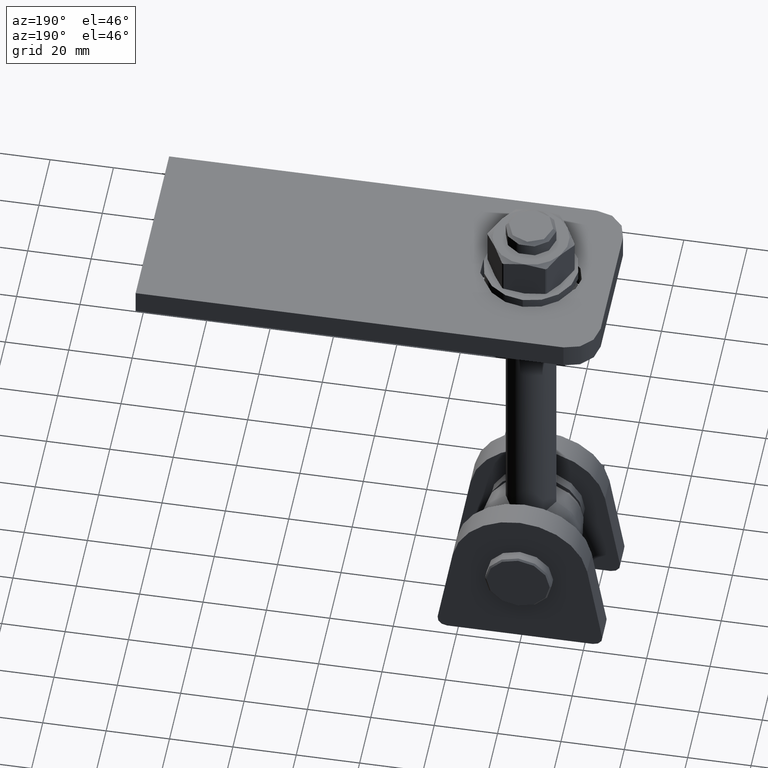
[diagram: clean part render]
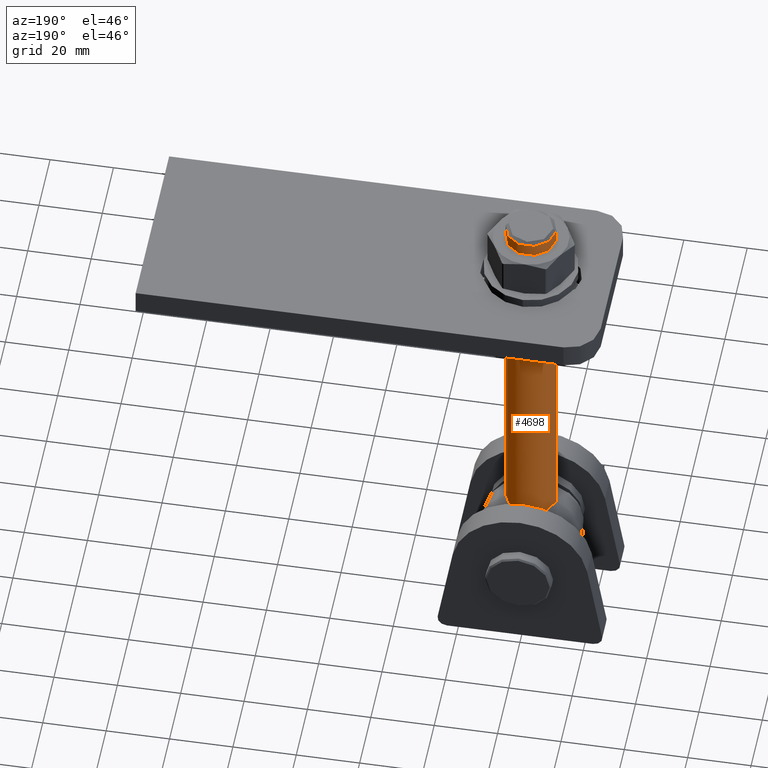
[diagram: same view with one face highlighted and labeled with its STEP entity id]
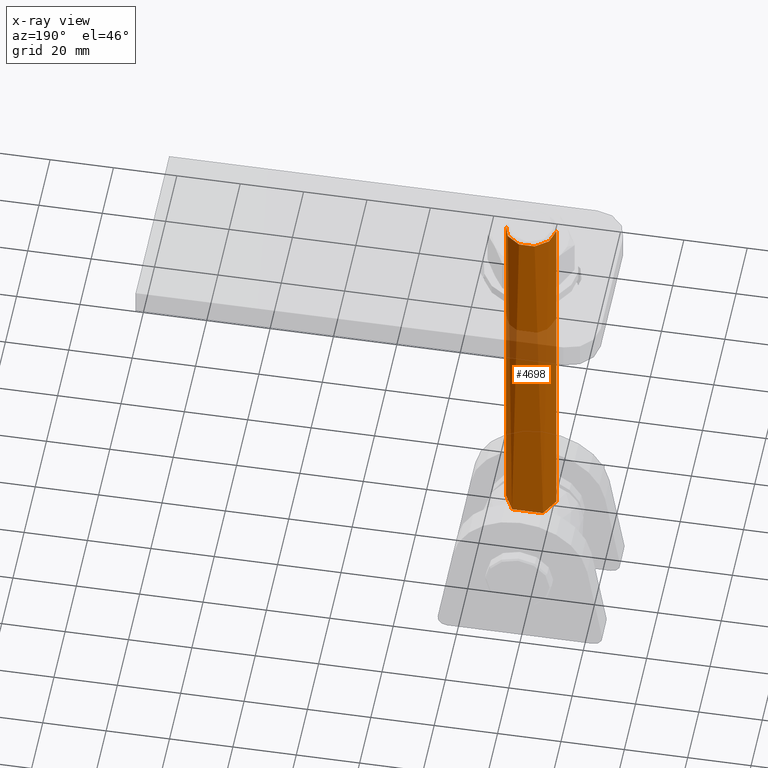
[diagram: x-ray of the same camera — body ghosted, the highlighted face saturated]
A machine part, auxiliary view. The second image highlights one B-rep face of the part: STEP entity #4698.
The next image is the same camera in x-ray: the body ghosted, the highlighted face saturated — about 12% of this face is hidden behind the body in this view.
In plain terms, the highlighted cylindrical surface (edge-blend (fillet) strip) has radius 8 mm, axis along (0, 0, 1).
Its self-contained STEP definition (entity closure, byte-faithful):
#371 = CARTESIAN_POINT ( 'NONE',  ( -7.646875434342086386, 2.430865528045758950, 14.03204079114772007 ) ) ;
#393 = EDGE_CURVE ( 'NONE', #15464, #9085, #11807, .T. ) ;
#492 = EDGE_LOOP ( 'NONE', ( #15483, #2397, #10115, #16302, #9228, #3945 ) ) ;
#624 = EDGE_CURVE ( 'NONE', #6133, #4695, #4998, .T. ) ;
#625 = DIRECTION ( 'NONE',  ( 1.000000000000000000, 0.000000000000000000, 0.000000000000000000 ) ) ;
#971 = LINE ( 'NONE', #7330, #14424 ) ;
#1038 = CARTESIAN_POINT ( 'NONE',  ( -4.890266757933003028, 6.331294578224540004, 14.75735962065576601 ) ) ;
#1101 = CARTESIAN_POINT ( 'NONE',  ( -4.178414855855719701, 6.835914880061697119, 14.92133391211843296 ) ) ;
#1104 = CARTESIAN_POINT ( 'NONE',  ( 7.306096291146537247, 3.273109272230924738, 14.10725161645347114 ) ) ;
#1123 = B_SPLINE_CURVE_WITH_KNOTS ( 'NONE', 3,
 ( #12819, #10277, #6352, #6462, #14256, #15694, #8994, #3683, #10328, #7747, #10437, #5036, #7689, #15585, #3742, #1101, #15743, #1038 ),
 .UNSPECIFIED., .F., .F.,
 ( 4, 2, 2, 2, 2, 2, 2, 2, 4 ),
 ( 0.007326280616070676363, 0.009966224182448957941, 0.01128619596563809960, 0.01260616774882724125, 0.01326615364042181382, 0.01392613953201638291, 0.01524611131520552630, 0.01656608309839466969, 0.01788605488158381135 ),
 .UNSPECIFIED. ) ;
#1184 = EDGE_CURVE ( 'NONE', #4695, #3259, #14979, .T. ) ;
#1369 = EDGE_CURVE ( 'NONE', #9085, #6133, #1123, .T. ) ;
#1508 = CARTESIAN_POINT ( 'NONE',  ( 4.890266757933002140, 6.331294578224538228, 14.75735962065576601 ) ) ;
#1660 = CARTESIAN_POINT ( 'NONE',  ( -8.000000000000000000, 3.469446951953614189E-15, 14.14434515981563578 ) ) ;
#1785 = AXIS2_PLACEMENT_3D ( 'NONE', #13112, #13218, #10978 ) ;
#1840 = CARTESIAN_POINT ( 'NONE',  ( -7.438853820049363463, 3.005111151758782739, 14.07334226291325052 ) ) ;
#2397 = ORIENTED_EDGE ( 'NONE', *, *, #1184, .T. ) ;
#2642 = CARTESIAN_POINT ( 'NONE',  ( -8.000000000000000000, 9.797174393178825657E-16, 134.9999999999999716 ) ) ;
#3259 = VERTEX_POINT ( 'NONE', #2642 ) ;
#3633 = CARTESIAN_POINT ( 'NONE',  ( 8.000000000000000000, 0.6147576067159883362, 14.06587005194852580 ) ) ;
#3683 = CARTESIAN_POINT ( 'NONE',  ( -0.2161584738224671953, 8.000167325950869213, 15.36117966194622397 ) ) ;
#3742 = CARTESIAN_POINT ( 'NONE',  ( -3.413275982092973670, 7.248339811650108544, 15.06775708458043006 ) ) ;
#3945 = ORIENTED_EDGE ( 'NONE', *, *, #1369, .T. ) ;
#4695 = VERTEX_POINT ( 'NONE', #1660 ) ;
#4698 = ADVANCED_FACE ( 'NONE', ( #5534 ), #8212, .T. ) ;
#4923 = CARTESIAN_POINT ( 'NONE',  ( 7.930059011978167760, 1.220614503078636170, 14.02862362043325817 ) ) ;
#4978 = CARTESIAN_POINT ( 'NONE',  ( 7.633177986073821586, 2.414325646818747728, 14.04139488420872794 ) ) ;
#4998 = B_SPLINE_CURVE_WITH_KNOTS ( 'NONE', 3,
 ( #13595, #11063, #13699, #15086, #8373, #5773, #9831, #1840, #371, #5652, #8248, #16353 ),
 .UNSPECIFIED., .F., .F.,
 ( 4, 2, 2, 2, 2, 4 ),
 ( 0.01788605488158381135, 0.01971785334292976838, 0.02063375257360275036, 0.02154965180427573235, 0.02338145026562168938, 0.02521324872696764988 ),
 .UNSPECIFIED. ) ;
#5036 = CARTESIAN_POINT ( 'NONE',  ( -1.749197343105955982, 7.818778197815754893, 15.28762940315393237 ) ) ;
#5534 = FACE_OUTER_BOUND ( 'NONE', #492, .T. ) ;
#5652 = CARTESIAN_POINT ( 'NONE',  ( -7.929955858404095004, 1.224586137251349793, 14.02819458966202149 ) ) ;
#5773 = CARTESIAN_POINT ( 'NONE',  ( -6.885826319043446553, 4.083963764793234752, 14.21741895314990956 ) ) ;
#5855 = CARTESIAN_POINT ( 'NONE',  ( -8.000000000000000000, 9.797174393178825657E-16, -16.25199999999998823 ) ) ;
#6007 = CARTESIAN_POINT ( 'NONE',  ( 0.000000000000000000, 0.000000000000000000, 134.9999999999999716 ) ) ;
#6133 = VERTEX_POINT ( 'NONE', #14916 ) ;
#6136 = CARTESIAN_POINT ( 'NONE',  ( 4.890266757933002140, 6.331294578224538228, 14.75735962065576601 ) ) ;
#6352 = CARTESIAN_POINT ( 'NONE',  ( 3.435037750614081009, 7.278791775824340782, 15.07785442151732980 ) ) ;
#6353 = CARTESIAN_POINT ( 'NONE',  ( 8.000000000000000000, 3.228496193458325382E-15, 14.14434515981563401 ) ) ;
#6462 = CARTESIAN_POINT ( 'NONE',  ( 2.181932797261305623, 7.709360724743893556, 15.24379700737656940 ) ) ;
#7330 = CARTESIAN_POINT ( 'NONE',  ( 8.000000000000000000, 0.000000000000000000, -16.25199999999998823 ) ) ;
#7466 = CARTESIAN_POINT ( 'NONE',  ( 7.036830876839570870, 3.817760932042034927, 14.17594739047687646 ) ) ;
#7640 = CARTESIAN_POINT ( 'NONE',  ( 6.887017033809049060, 4.081890912608330702, 14.21709103613912184 ) ) ;
#7689 = CARTESIAN_POINT ( 'NONE',  ( -2.175021701743620639, 7.711343588570886531, 15.24457894531217228 ) ) ;
#7747 = CARTESIAN_POINT ( 'NONE',  ( -0.8806845102668570124, 7.954453788787160917, 15.34249943805522420 ) ) ;
#7839 = EDGE_CURVE ( 'NONE', #15464, #11956, #971, .T. ) ;
#8212 = CYLINDRICAL_SURFACE ( 'NONE', #1785, 8.000000000000000000 ) ;
#8248 = CARTESIAN_POINT ( 'NONE',  ( -8.000000000000000000, 0.6152582171426540514, 14.06580614796946094 ) ) ;
#8373 = CARTESIAN_POINT ( 'NONE',  ( -6.554250401822802274, 4.597299837772297337, 14.31058039402641313 ) ) ;
#8782 = CARTESIAN_POINT ( 'NONE',  ( 8.000000000000000000, 3.228496193458325382E-15, 14.14434515981563401 ) ) ;
#8994 = CARTESIAN_POINT ( 'NONE',  ( 0.4506363237751919715, 7.999658356440138895, 15.36097114506701544 ) ) ;
#9085 = VERTEX_POINT ( 'NONE', #1508 ) ;
#9228 = ORIENTED_EDGE ( 'NONE', *, *, #393, .T. ) ;
#9831 = CARTESIAN_POINT ( 'NONE',  ( -7.035682555711582076, 3.819814232770714302, 14.17626044242625660 ) ) ;
#10115 = ORIENTED_EDGE ( 'NONE', *, *, #16021, .T. ) ;
#10218 = CARTESIAN_POINT ( 'NONE',  ( 7.425549545016947306, 2.992588921062727003, 14.07969522857325195 ) ) ;
#10277 = CARTESIAN_POINT ( 'NONE',  ( 4.196840737939016464, 6.866894078889900221, 14.92445239967489101 ) ) ;
#10328 = CARTESIAN_POINT ( 'NONE',  ( -0.4397447498408849631, 7.990967703573941705, 15.35740378406089413 ) ) ;
#10437 = CARTESIAN_POINT ( 'NONE',  ( -1.099223611576112480, 7.927165534710090000, 15.33138190238823029 ) ) ;
#10978 = DIRECTION ( 'NONE',  ( 1.000000000000000000, 0.000000000000000000, 0.000000000000000000 ) ) ;
#11040 = DIRECTION ( 'NONE',  ( 0.000000000000000000, 0.000000000000000000, 1.000000000000000000 ) ) ;
#11063 = CARTESIAN_POINT ( 'NONE',  ( -5.371197808628560999, 5.959825346929696899, 14.64147111422503400 ) ) ;
#11477 = DIRECTION ( 'NONE',  ( 0.000000000000000000, 0.000000000000000000, 1.000000000000000000 ) ) ;
#11807 = B_SPLINE_CURVE_WITH_KNOTS ( 'NONE', 3,
 ( #6353, #3633, #4923, #12935, #4978, #10218, #1104, #7466, #7640, #16741, #15644, #15418, #16794, #6136 ),
 .UNSPECIFIED., .F., .F.,
 ( 4, 2, 2, 2, 2, 2, 4 ),
 ( 1.986167726052119538E-07, 0.001831719116597123114, 0.002747479366509381592, 0.003663239616421640719, 0.004578999866333899847, 0.005494760116246158108, 0.007326280616070676363 ),
 .UNSPECIFIED. ) ;
#11883 = VECTOR ( 'NONE', #11040, 1000.000000000000000 ) ;
#11956 = VERTEX_POINT ( 'NONE', #12300 ) ;
#12300 = CARTESIAN_POINT ( 'NONE',  ( 8.000000000000000000, 0.000000000000000000, 134.9999999999999716 ) ) ;
#12819 = CARTESIAN_POINT ( 'NONE',  ( 4.890266757933002140, 6.331294578224538228, 14.75735962065576601 ) ) ;
#12935 = CARTESIAN_POINT ( 'NONE',  ( 7.721162730447676203, 2.116029303812059670, 14.03082168912361460 ) ) ;
#13112 = CARTESIAN_POINT ( 'NONE',  ( 0.000000000000000000, 0.000000000000000000, -16.25199999999998823 ) ) ;
#13218 = DIRECTION ( 'NONE',  ( 0.000000000000000000, 0.000000000000000000, 1.000000000000000000 ) ) ;
#13269 = CIRCLE ( 'NONE', #14007, 8.000000000000000000 ) ;
#13595 = CARTESIAN_POINT ( 'NONE',  ( -4.890266757933003028, 6.331294578224540004, 14.75735962065576601 ) ) ;
#13699 = CARTESIAN_POINT ( 'NONE',  ( -5.801316083932563039, 5.541452024344921234, 14.52344880042866038 ) ) ;
#13891 = DIRECTION ( 'NONE',  ( 0.000000000000000000, 0.000000000000000000, -1.000000000000000000 ) ) ;
#14007 = AXIS2_PLACEMENT_3D ( 'NONE', #6007, #13891, #625 ) ;
#14256 = CARTESIAN_POINT ( 'NONE',  ( 1.753476001152317165, 7.817764106775647370, 15.28722362758567499 ) ) ;
#14424 = VECTOR ( 'NONE', #11477, 1000.000000000000000 ) ;
#14916 = CARTESIAN_POINT ( 'NONE',  ( -4.890266757933003028, 6.331294578224540004, 14.75735962065576601 ) ) ;
#14979 = LINE ( 'NONE', #5855, #11883 ) ;
#15086 = CARTESIAN_POINT ( 'NONE',  ( -6.374683501389310614, 4.842948478774856014, 14.36195665167281810 ) ) ;
#15418 = CARTESIAN_POINT ( 'NONE',  ( 5.801970511724221069, 5.540895092423189006, 14.52327154617140437 ) ) ;
#15464 = VERTEX_POINT ( 'NONE', #8782 ) ;
#15483 = ORIENTED_EDGE ( 'NONE', *, *, #624, .T. ) ;
#15585 = CARTESIAN_POINT ( 'NONE',  ( -3.011660592457401808, 7.424650821411614920, 15.13405147148728602 ) ) ;
#15644 = CARTESIAN_POINT ( 'NONE',  ( 6.376282426182669383, 4.840879825258341818, 14.36150275321476144 ) ) ;
#15694 = CARTESIAN_POINT ( 'NONE',  ( 0.8888974652802634768, 7.962535714960727873, 15.34565617527221093 ) ) ;
#15743 = CARTESIAN_POINT ( 'NONE',  ( -4.543713668183601229, 6.598970806793852617, 14.84086747466504796 ) ) ;
#16021 = EDGE_CURVE ( 'NONE', #3259, #11956, #13269, .T. ) ;
#16302 = ORIENTED_EDGE ( 'NONE', *, *, #7839, .F. ) ;
#16353 = CARTESIAN_POINT ( 'NONE',  ( -8.000000000000000000, 3.469446951953614189E-15, 14.14434515981563578 ) ) ;
#16741 = CARTESIAN_POINT ( 'NONE',  ( 6.556586432556591681, 4.593910251498745545, 14.30991748704022015 ) ) ;
#16794 = CARTESIAN_POINT ( 'NONE',  ( 5.371346727560173839, 5.959710322539041094, 14.64143522967871647 ) ) ;